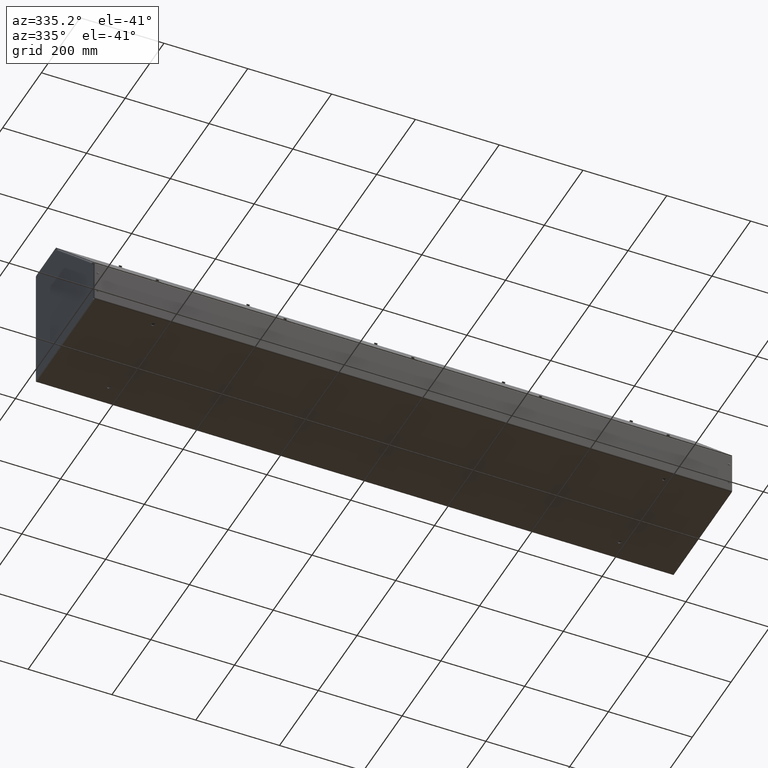
[diagram: clean part render]
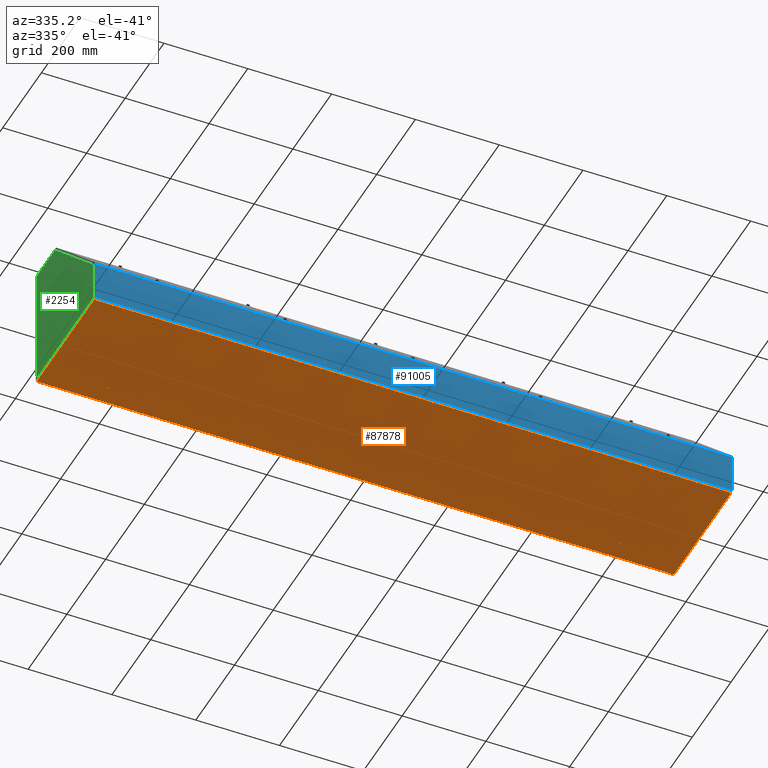
[diagram: same view with three faces highlighted in distinct colors, each labeled with its STEP entity id]
A machine part, auxiliary view with three faces highlighted in distinct colors.
Their STEP definitions:

[orange] entity #87878 — the highlighted planar face has unit normal (0, 0, 1).
#22 = CARTESIAN_POINT ( 'NONE',  ( 29.20839738715530842, 1.796556077333093304, -2.999999999999973355 ) ) ;
#30 = CARTESIAN_POINT ( 'NONE',  ( -0.3833526128446826386, -5.602443922666927811, -2.999999999999999556 ) ) ;
#740 = DIRECTION ( 'NONE',  ( -7.880034776090749596E-14, -1.000000000000000000, 0.000000000000000000 ) ) ;
#747 = DIRECTION ( 'NONE',  ( -7.880034776090749596E-14, -1.000000000000000000, 0.000000000000000000 ) ) ;
#986 = VERTEX_POINT ( 'NONE', #67304 ) ;
#1299 = CARTESIAN_POINT ( 'NONE',  ( -24.38335261284468913, 4.261056077333083003, -2.999999999999999556 ) ) ;
#1407 = CARTESIAN_POINT ( 'NONE',  ( 29.27289738715530731, -4.274443922666907092, -2.999999999999921396 ) ) ;
#1735 = VECTOR ( 'NONE', #740, 39.37007874015748143 ) ;
#2116 = VERTEX_POINT ( 'NONE', #4968 ) ;
#2302 = AXIS2_PLACEMENT_3D ( 'NONE', #47939, #48454, #15919 ) ;
#2579 = CARTESIAN_POINT ( 'NONE',  ( 29.33739738715532042, 4.796556077333087309, -2.999999999999999556 ) ) ;
#2933 = ORIENTED_EDGE ( 'NONE', *, *, #7736, .T. ) ;
#3079 = AXIS2_PLACEMENT_3D ( 'NONE', #96219, #87852, #88976 ) ;
#3989 = DIRECTION ( 'NONE',  ( 1.000000000000000000, 0.000000000000000000, 0.000000000000000000 ) ) ;
#4346 = EDGE_LOOP ( 'NONE', ( #55956, #50996, #81074, #64146 ) ) ;
#4618 = VERTEX_POINT ( 'NONE', #34026 ) ;
#4670 = DIRECTION ( 'NONE',  ( 1.000000000000000000, 0.000000000000000000, 0.000000000000000000 ) ) ;
#4676 = DIRECTION ( 'NONE',  ( 0.000000000000000000, 0.000000000000000000, 1.000000000000000000 ) ) ;
#4826 = EDGE_CURVE ( 'NONE', #73029, #93962, #28736, .T. ) ;
#4968 = CARTESIAN_POINT ( 'NONE',  ( -24.52397761284468913, 4.261056077333083003, -2.999999999999999556 ) ) ;
#5156 = VECTOR ( 'NONE', #36824, 39.37007874015748143 ) ;
#5968 = CARTESIAN_POINT ( 'NONE',  ( 29.55414738715530731, 6.261056077333091885, -2.999999999999999556 ) ) ;
#6246 = DIRECTION ( 'NONE',  ( 1.000000000000000000, 0.000000000000000000, 0.000000000000000000 ) ) ;
#6288 = DIRECTION ( 'NONE',  ( 0.000000000000000000, 0.000000000000000000, 1.000000000000000000 ) ) ;
#6345 = DIRECTION ( 'NONE',  ( 1.000000000000000000, 0.000000000000000000, 0.000000000000000000 ) ) ;
#6601 = CIRCLE ( 'NONE', #85334, 0.06449999999999926625 ) ;
#6773 = EDGE_CURVE ( 'NONE', #22938, #48491, #62423, .T. ) ;
#6783 = DIRECTION ( 'NONE',  ( 0.000000000000000000, 0.000000000000000000, 1.000000000000000000 ) ) ;
#7231 = AXIS2_PLACEMENT_3D ( 'NONE', #67402, #20790, #27527 ) ;
#7360 = DIRECTION ( 'NONE',  ( 0.000000000000000000, 0.000000000000000000, 1.000000000000000000 ) ) ;
#7649 = VERTEX_POINT ( 'NONE', #23889 ) ;
#7736 = EDGE_CURVE ( 'NONE', #93962, #73029, #21456, .T. ) ;
#7904 = AXIS2_PLACEMENT_3D ( 'NONE', #54460, #104198, #62807 ) ;
#7916 = DIRECTION ( 'NONE',  ( 1.000000000000000000, 0.000000000000000000, 0.000000000000000000 ) ) ;
#8119 = ORIENTED_EDGE ( 'NONE', *, *, #106785, .F. ) ;
#8417 = AXIS2_PLACEMENT_3D ( 'NONE', #56256, #90839, #4670 ) ;
#8664 = DIRECTION ( 'NONE',  ( 1.576006955218149919E-13, 1.000000000000000000, 0.000000000000000000 ) ) ;
#9005 = CARTESIAN_POINT ( 'NONE',  ( 29.20839738715530842, -4.203443922666907362, -2.999999999999921396 ) ) ;
#9179 = AXIS2_PLACEMENT_3D ( 'NONE', #21703, #73319, #45320 ) ;
#9226 = VERTEX_POINT ( 'NONE', #104132 ) ;
#9752 = PLANE ( 'NONE',  #86929 ) ;
#9860 = AXIS2_PLACEMENT_3D ( 'NONE', #27226, #35140, #68216 ) ;
#9878 = VERTEX_POINT ( 'NONE', #104685 ) ;
#10266 = VECTOR ( 'NONE', #73032, 39.37007874015748143 ) ;
#10450 = VERTEX_POINT ( 'NONE', #72187 ) ;
#10840 = FACE_BOUND ( 'NONE', #52843, .T. ) ;
#11210 = VERTEX_POINT ( 'NONE', #65144 ) ;
#11350 = LINE ( 'NONE', #64009, #47850 ) ;
#11400 = CARTESIAN_POINT ( 'NONE',  ( 29.20839738715530842, -1.203443922666904031, -2.999999999999947153 ) ) ;
#11482 = CARTESIAN_POINT ( 'NONE',  ( -30.10410261284469158, -1.274443922666924633, -2.999999999999947153 ) ) ;
#11565 = VERTEX_POINT ( 'NONE', #28043 ) ;
#11792 = CARTESIAN_POINT ( 'NONE',  ( -30.32085261284468913, -5.738943922666926767, -2.999999999999999556 ) ) ;
#11829 = EDGE_CURVE ( 'NONE', #59904, #16909, #6601, .T. ) ;
#11963 = FACE_BOUND ( 'NONE', #4346, .T. ) ;
#12011 = CARTESIAN_POINT ( 'NONE',  ( -30.03960261284468913, 1.725556077333072924, -2.999999999999973355 ) ) ;
#12242 = CARTESIAN_POINT ( 'NONE',  ( -30.03960261284468913, -4.203443922666926902, -2.999999999999921396 ) ) ;
#12280 = EDGE_CURVE ( 'NONE', #48491, #59904, #11350, .T. ) ;
#12507 = CARTESIAN_POINT ( 'NONE',  ( -0.3833526128446826386, 0.2610560773330823370, -2.999999999999999556 ) ) ;
#12755 = CARTESIAN_POINT ( 'NONE',  ( 29.33739738715530621, 4.725556077333087579, -2.999999999999999556 ) ) ;
#12968 = AXIS2_PLACEMENT_3D ( 'NONE', #25695, #61562, #18981 ) ;
#13196 = LINE ( 'NONE', #49031, #29543 ) ;
#13539 = CIRCLE ( 'NONE', #49288, 0.06449999999999926625 ) ;
#13738 = CARTESIAN_POINT ( 'NONE',  ( 29.33739738715530621, -1.274443922666906870, -2.999999999999947153 ) ) ;
#13936 = VECTOR ( 'NONE', #92672, 39.37007874015748143 ) ;
#14266 = CARTESIAN_POINT ( 'NONE',  ( -30.32085261284468913, -5.602443922666924259, -2.999999999999999112 ) ) ;
#14779 = EDGE_LOOP ( 'NONE', ( #8119, #106382, #105166, #95073 ) ) ;
#15315 = EDGE_CURVE ( 'NONE', #35840, #7649, #102714, .T. ) ;
#15619 = VECTOR ( 'NONE', #747, 39.37007874015748143 ) ;
#15919 = DIRECTION ( 'NONE',  ( 1.000000000000000000, 0.000000000000000000, 0.000000000000000000 ) ) ;
#16909 = VERTEX_POINT ( 'NONE', #24766 ) ;
#17350 = VERTEX_POINT ( 'NONE', #51563 ) ;
#18211 = ORIENTED_EDGE ( 'NONE', *, *, #84879, .T. ) ;
#18981 = DIRECTION ( 'NONE',  ( 1.000000000000000000, 0.000000000000000000, 0.000000000000000000 ) ) ;
#18983 = ORIENTED_EDGE ( 'NONE', *, *, #55840, .T. ) ;
#19032 = CARTESIAN_POINT ( 'NONE',  ( 29.20839738715530132, -4.274443922666904427, -2.999999999999921396 ) ) ;
#19038 = EDGE_CURVE ( 'NONE', #17350, #21876, #87567, .T. ) ;
#19190 = DIRECTION ( 'NONE',  ( 1.576006955218099937E-13, 1.000000000000000000, 0.000000000000000000 ) ) ;
#19232 = FACE_BOUND ( 'NONE', #52305, .T. ) ;
#19812 = VERTEX_POINT ( 'NONE', #11482 ) ;
#20383 = EDGE_CURVE ( 'NONE', #11210, #104161, #84038, .T. ) ;
#20790 = DIRECTION ( 'NONE',  ( 0.000000000000000000, 0.000000000000000000, 1.000000000000000000 ) ) ;
#20853 = EDGE_CURVE ( 'NONE', #45046, #2116, #50633, .T. ) ;
#21167 = DIRECTION ( 'NONE',  ( 1.000000000000000000, 0.000000000000000000, 0.000000000000000000 ) ) ;
#21456 = CIRCLE ( 'NONE', #94766, 0.1406250000000000833 ) ;
#21703 = CARTESIAN_POINT ( 'NONE',  ( -30.03960261284468913, -1.274443922666927076, -2.999999999999947153 ) ) ;
#21730 = DIRECTION ( 'NONE',  ( -7.880034776090749596E-14, -1.000000000000000000, 0.000000000000000000 ) ) ;
#21815 = VECTOR ( 'NONE', #54628, 39.37007874015748143 ) ;
#21876 = VERTEX_POINT ( 'NONE', #76790 ) ;
#22104 = DIRECTION ( 'NONE',  ( 1.576006955218099937E-13, 1.000000000000000000, 0.000000000000000000 ) ) ;
#22144 = ORIENTED_EDGE ( 'NONE', *, *, #12280, .T. ) ;
#22340 = CIRCLE ( 'NONE', #43857, 0.06449999999999926625 ) ;
#22938 = VERTEX_POINT ( 'NONE', #27759 ) ;
#23678 = AXIS2_PLACEMENT_3D ( 'NONE', #83496, #6783, #75146 ) ;
#23758 = EDGE_CURVE ( 'NONE', #94387, #100197, #109403, .T. ) ;
#23889 = CARTESIAN_POINT ( 'NONE',  ( -29.97510261284469024, 4.725556077333068039, -2.999999999999999556 ) ) ;
#24133 = CARTESIAN_POINT ( 'NONE',  ( 29.20839738715530842, 1.796556077333095747, -2.999999999999973355 ) ) ;
#24766 = CARTESIAN_POINT ( 'NONE',  ( -29.97510261284469024, -4.274443922666931961, -2.999999999999921396 ) ) ;
#25158 = EDGE_CURVE ( 'NONE', #49818, #11210, #72212, .T. ) ;
#25652 = AXIS2_PLACEMENT_3D ( 'NONE', #30840, #46646, #3989 ) ;
#25695 = CARTESIAN_POINT ( 'NONE',  ( 29.27289738715530731, 1.725556077333093130, -2.999999999999973355 ) ) ;
#26144 = CARTESIAN_POINT ( 'NONE',  ( -30.10410261284468803, 1.796556077333073098, -2.999999999999973355 ) ) ;
#26287 = CIRCLE ( 'NONE', #8417, 0.06449999999999926625 ) ;
#26330 = CIRCLE ( 'NONE', #3079, 0.06449999999999926625 ) ;
#26830 = ORIENTED_EDGE ( 'NONE', *, *, #108437, .T. ) ;
#26837 = CARTESIAN_POINT ( 'NONE',  ( 29.27289738715530731, 4.725556077333092908, -2.999999999999999556 ) ) ;
#27226 = CARTESIAN_POINT ( 'NONE',  ( 29.27289738715530731, -1.203443922666906696, -2.999999999999947153 ) ) ;
#27381 = ORIENTED_EDGE ( 'NONE', *, *, #23758, .T. ) ;
#27468 = CARTESIAN_POINT ( 'NONE',  ( 29.33739738715530621, -1.274443922666911977, -2.999999999999947153 ) ) ;
#27527 = DIRECTION ( 'NONE',  ( 1.000000000000000000, 0.000000000000000000, 0.000000000000000000 ) ) ;
#27759 = CARTESIAN_POINT ( 'NONE',  ( -29.97510261284467603, -4.203443922666926902, -2.999999999999921396 ) ) ;
#27835 = EDGE_CURVE ( 'NONE', #7649, #100816, #64031, .T. ) ;
#27928 = LINE ( 'NONE', #89469, #108685 ) ;
#27941 = EDGE_CURVE ( 'NONE', #107866, #36642, #53135, .T. ) ;
#28043 = CARTESIAN_POINT ( 'NONE',  ( -30.10410261284468803, 4.796556077333074875, -2.999999999999999556 ) ) ;
#28124 = CARTESIAN_POINT ( 'NONE',  ( 29.20839738715530132, 4.725556077333095573, -2.999999999999999556 ) ) ;
#28736 = CIRCLE ( 'NONE', #7231, 0.1406250000000000833 ) ;
#28771 = DIRECTION ( 'NONE',  ( 1.000000000000000000, 0.000000000000000000, 0.000000000000000000 ) ) ;
#29068 = EDGE_CURVE ( 'NONE', #103129, #17350, #100555, .T. ) ;
#29250 = ORIENTED_EDGE ( 'NONE', *, *, #106525, .T. ) ;
#29283 = FACE_BOUND ( 'NONE', #65991, .T. ) ;
#29543 = VECTOR ( 'NONE', #22104, 39.37007874015748143 ) ;
#30178 = AXIS2_PLACEMENT_3D ( 'NONE', #12242, #38031, #21167 ) ;
#30271 = CARTESIAN_POINT ( 'NONE',  ( -30.10410261284469158, -4.274443922666923967, -2.999999999999921396 ) ) ;
#30840 = CARTESIAN_POINT ( 'NONE',  ( 29.27289738715530731, -4.203443922666907362, -2.999999999999921396 ) ) ;
#30905 = EDGE_LOOP ( 'NONE', ( #101977, #2933 ) ) ;
#31110 = EDGE_CURVE ( 'NONE', #100816, #11565, #26330, .T. ) ;
#31670 = DIRECTION ( 'NONE',  ( 0.000000000000000000, 0.000000000000000000, 1.000000000000000000 ) ) ;
#31713 = DIRECTION ( 'NONE',  ( 0.000000000000000000, 0.000000000000000000, 1.000000000000000000 ) ) ;
#32503 = CIRCLE ( 'NONE', #64773, 0.1406250000000000833 ) ;
#32736 = CARTESIAN_POINT ( 'NONE',  ( 29.33739738715530621, 4.725556077333092908, -2.999999999999999556 ) ) ;
#33312 = ORIENTED_EDGE ( 'NONE', *, *, #70662, .T. ) ;
#33612 = CARTESIAN_POINT ( 'NONE',  ( 29.27289738715530731, 1.796556077333093304, -2.999999999999973355 ) ) ;
#33729 = VERTEX_POINT ( 'NONE', #110429 ) ;
#33766 = CARTESIAN_POINT ( 'NONE',  ( 29.20839738715530842, 4.796556077333092638, -2.999999999999999556 ) ) ;
#34026 = CARTESIAN_POINT ( 'NONE',  ( -30.10410261284468803, -1.203443922666924237, -2.999999999999947153 ) ) ;
#34148 = DIRECTION ( 'NONE',  ( -7.880034776090749596E-14, -1.000000000000000000, 0.000000000000000000 ) ) ;
#35140 = DIRECTION ( 'NONE',  ( 0.000000000000000000, 0.000000000000000000, 1.000000000000000000 ) ) ;
#35441 = LINE ( 'NONE', #76343, #67460 ) ;
#35840 = VERTEX_POINT ( 'NONE', #100460 ) ;
#35956 = VERTEX_POINT ( 'NONE', #61291 ) ;
#36164 = VERTEX_POINT ( 'NONE', #42204 ) ;
#36209 = EDGE_CURVE ( 'NONE', #36642, #107866, #56267, .T. ) ;
#36563 = DIRECTION ( 'NONE',  ( 0.000000000000000000, 0.000000000000000000, 1.000000000000000000 ) ) ;
#36590 = DIRECTION ( 'NONE',  ( -7.880034776090749596E-14, -1.000000000000000000, 0.000000000000000000 ) ) ;
#36642 = VERTEX_POINT ( 'NONE', #78639 ) ;
#36824 = DIRECTION ( 'NONE',  ( -7.880034776090749596E-14, -1.000000000000000000, 0.000000000000000000 ) ) ;
#37236 = VERTEX_POINT ( 'NONE', #45929 ) ;
#37483 = EDGE_CURVE ( 'NONE', #97148, #49818, #71041, .T. ) ;
#37746 = FACE_BOUND ( 'NONE', #109325, .T. ) ;
#37806 = ORIENTED_EDGE ( 'NONE', *, *, #31110, .T. ) ;
#38013 = CARTESIAN_POINT ( 'NONE',  ( 29.33739738715530621, -4.274443922666912421, -2.999999999999921396 ) ) ;
#38031 = DIRECTION ( 'NONE',  ( 0.000000000000000000, 0.000000000000000000, 1.000000000000000000 ) ) ;
#38515 = CIRCLE ( 'NONE', #9860, 0.06449999999999926625 ) ;
#38593 = CARTESIAN_POINT ( 'NONE',  ( -29.97510261284469024, -1.274443922666927076, -2.999999999999947153 ) ) ;
#38897 = CARTESIAN_POINT ( 'NONE',  ( 23.75727238715530731, 4.261056077333083003, -2.999999999999999556 ) ) ;
#39088 = ORIENTED_EDGE ( 'NONE', *, *, #20383, .T. ) ;
#39429 = DIRECTION ( 'NONE',  ( 1.000000000000000000, 0.000000000000000000, -0.000000000000000000 ) ) ;
#39457 = ORIENTED_EDGE ( 'NONE', *, *, #37483, .T. ) ;
#40575 = AXIS2_PLACEMENT_3D ( 'NONE', #12011, #4676, #28771 ) ;
#40661 = EDGE_CURVE ( 'NONE', #36164, #75822, #77437, .T. ) ;
#40987 = DIRECTION ( 'NONE',  ( 0.000000000000000000, 0.000000000000000000, 1.000000000000000000 ) ) ;
#41365 = CARTESIAN_POINT ( 'NONE',  ( 23.61664738715530731, -4.738943922666926767, -2.999999999999999556 ) ) ;
#41626 = VECTOR ( 'NONE', #74541, 39.37007874015748143 ) ;
#41952 = VERTEX_POINT ( 'NONE', #14266 ) ;
#42161 = DIRECTION ( 'NONE',  ( 1.576006955218149919E-13, 1.000000000000000000, 0.000000000000000000 ) ) ;
#42170 = CARTESIAN_POINT ( 'NONE',  ( 29.33739738715532042, -4.203443922666911803, -2.999999999999921396 ) ) ;
#42204 = CARTESIAN_POINT ( 'NONE',  ( 29.20839738715530842, 4.796556077333094414, -2.999999999999999556 ) ) ;
#42516 = VERTEX_POINT ( 'NONE', #94125 ) ;
#43162 = DIRECTION ( 'NONE',  ( 1.000000000000000000, 0.000000000000000000, 0.000000000000000000 ) ) ;
#43857 = AXIS2_PLACEMENT_3D ( 'NONE', #109290, #84683, #6345 ) ;
#44105 = VECTOR ( 'NONE', #80908, 39.37007874015748143 ) ;
#44442 = AXIS2_PLACEMENT_3D ( 'NONE', #56725, #91311, #6246 ) ;
#44534 = ORIENTED_EDGE ( 'NONE', *, *, #86987, .T. ) ;
#44586 = EDGE_LOOP ( 'NONE', ( #105932, #37806, #105016, #89617 ) ) ;
#45046 = VERTEX_POINT ( 'NONE', #74647 ) ;
#45096 = EDGE_CURVE ( 'NONE', #99420, #9878, #100839, .T. ) ;
#45320 = DIRECTION ( 'NONE',  ( 1.000000000000000000, 0.000000000000000000, 0.000000000000000000 ) ) ;
#45359 = DIRECTION ( 'NONE',  ( 0.000000000000000000, 0.000000000000000000, 1.000000000000000000 ) ) ;
#45488 = EDGE_CURVE ( 'NONE', #37236, #35956, #13196, .T. ) ;
#45775 = DIRECTION ( 'NONE',  ( 0.000000000000000000, 0.000000000000000000, 1.000000000000000000 ) ) ;
#45929 = CARTESIAN_POINT ( 'NONE',  ( -29.97510261284469024, 1.725556077333068039, -2.999999999999973355 ) ) ;
#46123 = CARTESIAN_POINT ( 'NONE',  ( 23.47602238715530731, 4.261056077333083003, -2.999999999999999556 ) ) ;
#46171 = FACE_BOUND ( 'NONE', #64083, .T. ) ;
#46646 = DIRECTION ( 'NONE',  ( 0.000000000000000000, 0.000000000000000000, 1.000000000000000000 ) ) ;
#47394 = EDGE_CURVE ( 'NONE', #33729, #4618, #26287, .T. ) ;
#47850 = VECTOR ( 'NONE', #36590, 39.37007874015748143 ) ;
#47939 = CARTESIAN_POINT ( 'NONE',  ( -24.38335261284468913, 4.261056077333083003, -2.999999999999999556 ) ) ;
#48454 = DIRECTION ( 'NONE',  ( 0.000000000000000000, 0.000000000000000000, 1.000000000000000000 ) ) ;
#48491 = VERTEX_POINT ( 'NONE', #87576 ) ;
#48568 = CARTESIAN_POINT ( 'NONE',  ( -30.03960261284468913, -4.274443922666926632, -2.999999999999921396 ) ) ;
#49031 = CARTESIAN_POINT ( 'NONE',  ( -29.97510261284469024, 1.725556077333072924, -2.999999999999973355 ) ) ;
#49288 = AXIS2_PLACEMENT_3D ( 'NONE', #33612, #40987, #101878 ) ;
#49788 = EDGE_CURVE ( 'NONE', #76916, #92321, #32503, .T. ) ;
#49818 = VERTEX_POINT ( 'NONE', #42170 ) ;
#50261 = EDGE_CURVE ( 'NONE', #19812, #10450, #84293, .T. ) ;
#50631 = ORIENTED_EDGE ( 'NONE', *, *, #45488, .T. ) ;
#50633 = CIRCLE ( 'NONE', #2302, 0.1406250000000000833 ) ;
#50776 = EDGE_CURVE ( 'NONE', #41952, #103129, #76172, .T. ) ;
#50782 = EDGE_CURVE ( 'NONE', #9226, #99420, #73834, .T. ) ;
#50996 = ORIENTED_EDGE ( 'NONE', *, *, #108302, .T. ) ;
#51266 = DIRECTION ( 'NONE',  ( 1.000000000000000000, 0.000000000000000000, 0.000000000000000000 ) ) ;
#51563 = CARTESIAN_POINT ( 'NONE',  ( 29.55414738715530731, 6.124556077333090265, -2.999999999999999556 ) ) ;
#51920 = ORIENTED_EDGE ( 'NONE', *, *, #93883, .T. ) ;
#51983 = VECTOR ( 'NONE', #19190, 39.37007874015748143 ) ;
#52184 = DIRECTION ( 'NONE',  ( 1.000000000000000000, 0.000000000000000000, 0.000000000000000000 ) ) ;
#52250 = VECTOR ( 'NONE', #72225, 39.37007874015748143 ) ;
#52294 = CARTESIAN_POINT ( 'NONE',  ( 29.55414738715530731, -5.602443922666921594, -2.999999999999999556 ) ) ;
#52305 = EDGE_LOOP ( 'NONE', ( #27381, #105829, #68543, #26830 ) ) ;
#52322 = CIRCLE ( 'NONE', #23678, 0.06449999999999926625 ) ;
#52334 = FACE_OUTER_BOUND ( 'NONE', #14779, .T. ) ;
#52617 = LINE ( 'NONE', #22, #95038 ) ;
#52843 = EDGE_LOOP ( 'NONE', ( #44534, #51920, #18983, #76065 ) ) ;
#53135 = CIRCLE ( 'NONE', #88870, 0.1406250000000000833 ) ;
#53405 = LINE ( 'NONE', #88016, #51983 ) ;
#53457 = FACE_BOUND ( 'NONE', #55206, .T. ) ;
#54392 = DIRECTION ( 'NONE',  ( -0.000000000000000000, -1.000000000000000000, 0.000000000000000000 ) ) ;
#54460 = CARTESIAN_POINT ( 'NONE',  ( -24.38335261284468913, -4.738943922666926767, -2.999999999999999556 ) ) ;
#54628 = DIRECTION ( 'NONE',  ( -1.000000000000000000, -0.000000000000000000, 0.000000000000000000 ) ) ;
#55199 = EDGE_CURVE ( 'NONE', #11565, #35840, #27928, .T. ) ;
#55206 = EDGE_LOOP ( 'NONE', ( #39457, #99309, #39088, #33312 ) ) ;
#55392 = LINE ( 'NONE', #38593, #52250 ) ;
#55420 = ORIENTED_EDGE ( 'NONE', *, *, #27941, .T. ) ;
#55840 = EDGE_CURVE ( 'NONE', #56238, #42516, #72534, .T. ) ;
#55956 = ORIENTED_EDGE ( 'NONE', *, *, #45096, .T. ) ;
#56238 = VERTEX_POINT ( 'NONE', #11400 ) ;
#56256 = CARTESIAN_POINT ( 'NONE',  ( -30.03960261284468913, -1.203443922666926902, -2.999999999999947153 ) ) ;
#56267 = CIRCLE ( 'NONE', #7904, 0.1406250000000000833 ) ;
#56725 = CARTESIAN_POINT ( 'NONE',  ( 23.61664738715530731, 4.261056077333083003, -2.999999999999999556 ) ) ;
#58127 = ORIENTED_EDGE ( 'NONE', *, *, #83854, .T. ) ;
#59516 = VECTOR ( 'NONE', #84589, 39.37007874015748143 ) ;
#59696 = CARTESIAN_POINT ( 'NONE',  ( -30.10410261284468803, 1.796556077333075541, -2.999999999999973355 ) ) ;
#59904 = VERTEX_POINT ( 'NONE', #30271 ) ;
#60104 = DIRECTION ( 'NONE',  ( -7.880034776090749596E-14, -1.000000000000000000, 0.000000000000000000 ) ) ;
#60526 = CIRCLE ( 'NONE', #89001, 0.06449999999999926625 ) ;
#60527 = EDGE_CURVE ( 'NONE', #100197, #36164, #60526, .T. ) ;
#60787 = DIRECTION ( 'NONE',  ( 1.000000000000000000, 0.000000000000000000, 0.000000000000000000 ) ) ;
#60890 = EDGE_CURVE ( 'NONE', #109408, #986, #68796, .T. ) ;
#61200 = ORIENTED_EDGE ( 'NONE', *, *, #74831, .T. ) ;
#61291 = CARTESIAN_POINT ( 'NONE',  ( -29.97510261284467603, 1.796556077333067769, -2.999999999999973355 ) ) ;
#61562 = DIRECTION ( 'NONE',  ( 0.000000000000000000, 0.000000000000000000, 1.000000000000000000 ) ) ;
#61872 = DIRECTION ( 'NONE',  ( 0.000000000000000000, 0.000000000000000000, 1.000000000000000000 ) ) ;
#62423 = CIRCLE ( 'NONE', #30178, 0.06449999999999926625 ) ;
#62546 = CARTESIAN_POINT ( 'NONE',  ( 29.27289738715530731, 4.796556077333092638, -2.999999999999999556 ) ) ;
#62562 = DIRECTION ( 'NONE',  ( 1.576006955218149919E-13, 1.000000000000000000, 0.000000000000000000 ) ) ;
#62807 = DIRECTION ( 'NONE',  ( 1.000000000000000000, 0.000000000000000000, 0.000000000000000000 ) ) ;
#63364 = AXIS2_PLACEMENT_3D ( 'NONE', #84257, #31670, #51266 ) ;
#64009 = CARTESIAN_POINT ( 'NONE',  ( -30.10410261284468803, -4.203443922666926902, -2.999999999999921396 ) ) ;
#64031 = LINE ( 'NONE', #82434, #10266 ) ;
#64083 = EDGE_LOOP ( 'NONE', ( #58127, #90822, #77969, #100049 ) ) ;
#64146 = ORIENTED_EDGE ( 'NONE', *, *, #50782, .T. ) ;
#64160 = EDGE_CURVE ( 'NONE', #42516, #86338, #22340, .T. ) ;
#64431 = AXIS2_PLACEMENT_3D ( 'NONE', #1407, #61872, #60787 ) ;
#64773 = AXIS2_PLACEMENT_3D ( 'NONE', #92427, #7360, #7916 ) ;
#65039 = EDGE_LOOP ( 'NONE', ( #29250, #82265, #22144, #87864 ) ) ;
#65144 = CARTESIAN_POINT ( 'NONE',  ( 29.20839738715530842, -4.203443922666903809, -2.999999999999921396 ) ) ;
#65172 = CARTESIAN_POINT ( 'NONE',  ( -29.97510261284467603, 4.796556077333067769, -2.999999999999999556 ) ) ;
#65404 = ORIENTED_EDGE ( 'NONE', *, *, #20853, .T. ) ;
#65991 = EDGE_LOOP ( 'NONE', ( #65404, #102502 ) ) ;
#67304 = CARTESIAN_POINT ( 'NONE',  ( -30.10410261284469158, 1.725556077333075589, -2.999999999999973355 ) ) ;
#67402 = CARTESIAN_POINT ( 'NONE',  ( 23.61664738715530731, -4.738943922666926767, -2.999999999999999556 ) ) ;
#67460 = VECTOR ( 'NONE', #60104, 39.37007874015748143 ) ;
#68216 = DIRECTION ( 'NONE',  ( 1.000000000000000000, 0.000000000000000000, 0.000000000000000000 ) ) ;
#68543 = ORIENTED_EDGE ( 'NONE', *, *, #40661, .T. ) ;
#68563 = EDGE_LOOP ( 'NONE', ( #55420, #74852 ) ) ;
#68796 = LINE ( 'NONE', #26144, #5156 ) ;
#69349 = VERTEX_POINT ( 'NONE', #91165 ) ;
#69888 = DIRECTION ( 'NONE',  ( 1.000000000000000000, 0.000000000000000000, 0.000000000000000000 ) ) ;
#69968 = AXIS2_PLACEMENT_3D ( 'NONE', #1299, #36563, #70215 ) ;
#70215 = DIRECTION ( 'NONE',  ( 1.000000000000000000, 0.000000000000000000, 0.000000000000000000 ) ) ;
#70662 = EDGE_CURVE ( 'NONE', #104161, #97148, #82283, .T. ) ;
#71041 = LINE ( 'NONE', #105040, #82826 ) ;
#71255 = DIRECTION ( 'NONE',  ( 0.000000000000000000, 0.000000000000000000, 1.000000000000000000 ) ) ;
#71576 = EDGE_CURVE ( 'NONE', #2116, #45046, #102067, .T. ) ;
#72187 = CARTESIAN_POINT ( 'NONE',  ( -29.97510261284469024, -1.274443922666932183, -2.999999999999947153 ) ) ;
#72212 = CIRCLE ( 'NONE', #25652, 0.06449999999999926625 ) ;
#72225 = DIRECTION ( 'NONE',  ( 1.576006955218099937E-13, 1.000000000000000000, 0.000000000000000000 ) ) ;
#72534 = LINE ( 'NONE', #109826, #1735 ) ;
#73029 = VERTEX_POINT ( 'NONE', #107810 ) ;
#73032 = DIRECTION ( 'NONE',  ( 1.576006955218099937E-13, 1.000000000000000000, 0.000000000000000000 ) ) ;
#73319 = DIRECTION ( 'NONE',  ( 0.000000000000000000, 0.000000000000000000, 1.000000000000000000 ) ) ;
#73834 = CIRCLE ( 'NONE', #12968, 0.06449999999999926625 ) ;
#74541 = DIRECTION ( 'NONE',  ( 1.000000000000000000, 0.000000000000000000, -0.000000000000000000 ) ) ;
#74647 = CARTESIAN_POINT ( 'NONE',  ( -24.24272761284468913, 4.261056077333083003, -2.999999999999999556 ) ) ;
#74831 = EDGE_CURVE ( 'NONE', #986, #37236, #93784, .T. ) ;
#74852 = ORIENTED_EDGE ( 'NONE', *, *, #36209, .T. ) ;
#75146 = DIRECTION ( 'NONE',  ( 1.000000000000000000, 0.000000000000000000, 0.000000000000000000 ) ) ;
#75822 = VERTEX_POINT ( 'NONE', #28124 ) ;
#76065 = ORIENTED_EDGE ( 'NONE', *, *, #64160, .T. ) ;
#76172 = LINE ( 'NONE', #30, #41626 ) ;
#76343 = CARTESIAN_POINT ( 'NONE',  ( -30.10410261284468803, -1.203443922666926902, -2.999999999999947153 ) ) ;
#76790 = CARTESIAN_POINT ( 'NONE',  ( -30.32085261284468913, 6.124556077333084048, -2.999999999999999556 ) ) ;
#76916 = VERTEX_POINT ( 'NONE', #46123 ) ;
#77437 = LINE ( 'NONE', #33766, #15619 ) ;
#77969 = ORIENTED_EDGE ( 'NONE', *, *, #103781, .T. ) ;
#78639 = CARTESIAN_POINT ( 'NONE',  ( -24.52397761284468913, -4.738943922666926767, -2.999999999999999556 ) ) ;
#79146 = FACE_BOUND ( 'NONE', #30905, .T. ) ;
#79546 = CARTESIAN_POINT ( 'NONE',  ( -24.38335261284468913, -4.738943922666926767, -2.999999999999999556 ) ) ;
#79775 = AXIS2_PLACEMENT_3D ( 'NONE', #26837, #45359, #43162 ) ;
#80273 = FACE_BOUND ( 'NONE', #65039, .T. ) ;
#80908 = DIRECTION ( 'NONE',  ( 1.576006955218149919E-13, 1.000000000000000000, 0.000000000000000000 ) ) ;
#81074 = ORIENTED_EDGE ( 'NONE', *, *, #83797, .T. ) ;
#81617 = CARTESIAN_POINT ( 'NONE',  ( -24.24272761284468913, -4.738943922666926767, -2.999999999999999556 ) ) ;
#82265 = ORIENTED_EDGE ( 'NONE', *, *, #6773, .T. ) ;
#82283 = CIRCLE ( 'NONE', #64431, 0.06449999999999926625 ) ;
#82434 = CARTESIAN_POINT ( 'NONE',  ( -29.97510261284469024, 4.725556077333073368, -2.999999999999999556 ) ) ;
#82826 = VECTOR ( 'NONE', #62562, 39.37007874015748143 ) ;
#83496 = CARTESIAN_POINT ( 'NONE',  ( -30.03960261284468913, 1.796556077333073098, -2.999999999999973355 ) ) ;
#83797 = EDGE_CURVE ( 'NONE', #91594, #9226, #52617, .T. ) ;
#83854 = EDGE_CURVE ( 'NONE', #10450, #33729, #55392, .T. ) ;
#84038 = LINE ( 'NONE', #9005, #59516 ) ;
#84257 = CARTESIAN_POINT ( 'NONE',  ( -30.03960261284468913, 4.725556077333073368, -2.999999999999999556 ) ) ;
#84293 = CIRCLE ( 'NONE', #9179, 0.06449999999999926625 ) ;
#84589 = DIRECTION ( 'NONE',  ( -7.880034776090749596E-14, -1.000000000000000000, 0.000000000000000000 ) ) ;
#84683 = DIRECTION ( 'NONE',  ( 0.000000000000000000, 0.000000000000000000, 1.000000000000000000 ) ) ;
#84858 = DIRECTION ( 'NONE',  ( 1.000000000000000000, 0.000000000000000000, 0.000000000000000000 ) ) ;
#84879 = EDGE_CURVE ( 'NONE', #35956, #109408, #52322, .T. ) ;
#85334 = AXIS2_PLACEMENT_3D ( 'NONE', #48568, #31713, #84858 ) ;
#85512 = CIRCLE ( 'NONE', #44442, 0.1406250000000000833 ) ;
#86190 = EDGE_LOOP ( 'NONE', ( #50631, #18211, #102816, #61200 ) ) ;
#86338 = VERTEX_POINT ( 'NONE', #27468 ) ;
#86929 = AXIS2_PLACEMENT_3D ( 'NONE', #12507, #6288, #39429 ) ;
#86960 = CARTESIAN_POINT ( 'NONE',  ( 23.47602238715530731, -4.738943922666926767, -2.999999999999999556 ) ) ;
#86987 = EDGE_CURVE ( 'NONE', #86338, #69349, #90388, .T. ) ;
#87509 = FACE_BOUND ( 'NONE', #86190, .T. ) ;
#87567 = LINE ( 'NONE', #97020, #21815 ) ;
#87576 = CARTESIAN_POINT ( 'NONE',  ( -30.10410261284468803, -4.203443922666924237, -2.999999999999921396 ) ) ;
#87852 = DIRECTION ( 'NONE',  ( 0.000000000000000000, 0.000000000000000000, 1.000000000000000000 ) ) ;
#87864 = ORIENTED_EDGE ( 'NONE', *, *, #11829, .T. ) ;
#87878 = ADVANCED_FACE ( 'NONE', ( #96964, #19232, #80273, #53457, #87509, #11963, #46171, #10840, #37746, #79146, #29283, #97516, #52334 ), #9752, .F. ) ;
#88016 = CARTESIAN_POINT ( 'NONE',  ( -29.97510261284469024, -4.274443922666926632, -2.999999999999921396 ) ) ;
#88870 = AXIS2_PLACEMENT_3D ( 'NONE', #79546, #71255, #52184 ) ;
#88930 = VECTOR ( 'NONE', #8664, 39.37007874015748143 ) ;
#88976 = DIRECTION ( 'NONE',  ( 1.000000000000000000, 0.000000000000000000, 0.000000000000000000 ) ) ;
#89001 = AXIS2_PLACEMENT_3D ( 'NONE', #62546, #45775, #69888 ) ;
#89469 = CARTESIAN_POINT ( 'NONE',  ( -30.10410261284468803, 4.796556077333073098, -2.999999999999999556 ) ) ;
#89617 = ORIENTED_EDGE ( 'NONE', *, *, #15315, .T. ) ;
#90388 = LINE ( 'NONE', #13738, #44105 ) ;
#90822 = ORIENTED_EDGE ( 'NONE', *, *, #47394, .T. ) ;
#90839 = DIRECTION ( 'NONE',  ( 0.000000000000000000, 0.000000000000000000, 1.000000000000000000 ) ) ;
#91165 = CARTESIAN_POINT ( 'NONE',  ( 29.33739738715532042, -1.203443922666911581, -2.999999999999947153 ) ) ;
#91311 = DIRECTION ( 'NONE',  ( 0.000000000000000000, 0.000000000000000000, 1.000000000000000000 ) ) ;
#91594 = VERTEX_POINT ( 'NONE', #24133 ) ;
#92321 = VERTEX_POINT ( 'NONE', #38897 ) ;
#92427 = CARTESIAN_POINT ( 'NONE',  ( 23.61664738715530731, 4.261056077333083003, -2.999999999999999556 ) ) ;
#92672 = DIRECTION ( 'NONE',  ( -0.000000000000000000, 1.000000000000000000, 0.000000000000000000 ) ) ;
#92948 = CARTESIAN_POINT ( 'NONE',  ( 29.33739738715530621, 1.725556077333093130, -2.999999999999973355 ) ) ;
#93283 = DIRECTION ( 'NONE',  ( 1.000000000000000000, 0.000000000000000000, 0.000000000000000000 ) ) ;
#93784 = CIRCLE ( 'NONE', #40575, 0.06449999999999926625 ) ;
#93859 = ORIENTED_EDGE ( 'NONE', *, *, #49788, .T. ) ;
#93883 = EDGE_CURVE ( 'NONE', #69349, #56238, #38515, .T. ) ;
#93962 = VERTEX_POINT ( 'NONE', #86960 ) ;
#94125 = CARTESIAN_POINT ( 'NONE',  ( 29.20839738715530132, -1.274443922666904427, -2.999999999999947153 ) ) ;
#94387 = VERTEX_POINT ( 'NONE', #12755 ) ;
#94766 = AXIS2_PLACEMENT_3D ( 'NONE', #41365, #109542, #93283 ) ;
#95038 = VECTOR ( 'NONE', #34148, 39.37007874015748143 ) ;
#95073 = ORIENTED_EDGE ( 'NONE', *, *, #50776, .F. ) ;
#95711 = LINE ( 'NONE', #11792, #101961 ) ;
#96219 = CARTESIAN_POINT ( 'NONE',  ( -30.03960261284468913, 4.796556077333073098, -2.999999999999999556 ) ) ;
#96964 = FACE_BOUND ( 'NONE', #44586, .T. ) ;
#97020 = CARTESIAN_POINT ( 'NONE',  ( -0.3833526128446826386, 6.124556077333092929, -2.999999999999999556 ) ) ;
#97148 = VERTEX_POINT ( 'NONE', #38013 ) ;
#97516 = FACE_BOUND ( 'NONE', #68563, .T. ) ;
#99309 = ORIENTED_EDGE ( 'NONE', *, *, #25158, .T. ) ;
#99420 = VERTEX_POINT ( 'NONE', #101011 ) ;
#100049 = ORIENTED_EDGE ( 'NONE', *, *, #50261, .T. ) ;
#100197 = VERTEX_POINT ( 'NONE', #2579 ) ;
#100460 = CARTESIAN_POINT ( 'NONE',  ( -30.10410261284469158, 4.725556077333076033, -2.999999999999999556 ) ) ;
#100555 = LINE ( 'NONE', #5968, #13936 ) ;
#100816 = VERTEX_POINT ( 'NONE', #65172 ) ;
#100839 = LINE ( 'NONE', #92948, #108133 ) ;
#101011 = CARTESIAN_POINT ( 'NONE',  ( 29.33739738715530621, 1.725556077333088245, -2.999999999999973355 ) ) ;
#101878 = DIRECTION ( 'NONE',  ( 1.000000000000000000, 0.000000000000000000, 0.000000000000000000 ) ) ;
#101961 = VECTOR ( 'NONE', #54392, 39.37007874015748143 ) ;
#101977 = ORIENTED_EDGE ( 'NONE', *, *, #4826, .T. ) ;
#102067 = CIRCLE ( 'NONE', #69968, 0.1406250000000000833 ) ;
#102502 = ORIENTED_EDGE ( 'NONE', *, *, #71576, .T. ) ;
#102714 = CIRCLE ( 'NONE', #63364, 0.06449999999999926625 ) ;
#102816 = ORIENTED_EDGE ( 'NONE', *, *, #60890, .T. ) ;
#103129 = VERTEX_POINT ( 'NONE', #52294 ) ;
#103781 = EDGE_CURVE ( 'NONE', #4618, #19812, #35441, .T. ) ;
#104132 = CARTESIAN_POINT ( 'NONE',  ( 29.20839738715530132, 1.725556077333095795, -2.999999999999973355 ) ) ;
#104161 = VERTEX_POINT ( 'NONE', #19032 ) ;
#104198 = DIRECTION ( 'NONE',  ( 0.000000000000000000, 0.000000000000000000, 1.000000000000000000 ) ) ;
#104685 = CARTESIAN_POINT ( 'NONE',  ( 29.33739738715532042, 1.796556077333087975, -2.999999999999973355 ) ) ;
#105016 = ORIENTED_EDGE ( 'NONE', *, *, #55199, .T. ) ;
#105040 = CARTESIAN_POINT ( 'NONE',  ( 29.33739738715530621, -4.274443922666907092, -2.999999999999921396 ) ) ;
#105166 = ORIENTED_EDGE ( 'NONE', *, *, #29068, .F. ) ;
#105422 = EDGE_CURVE ( 'NONE', #92321, #76916, #85512, .T. ) ;
#105829 = ORIENTED_EDGE ( 'NONE', *, *, #60527, .T. ) ;
#105838 = ORIENTED_EDGE ( 'NONE', *, *, #105422, .T. ) ;
#105932 = ORIENTED_EDGE ( 'NONE', *, *, #27835, .T. ) ;
#106382 = ORIENTED_EDGE ( 'NONE', *, *, #19038, .F. ) ;
#106525 = EDGE_CURVE ( 'NONE', #16909, #22938, #53405, .T. ) ;
#106785 = EDGE_CURVE ( 'NONE', #21876, #41952, #95711, .T. ) ;
#107810 = CARTESIAN_POINT ( 'NONE',  ( 23.75727238715530731, -4.738943922666926767, -2.999999999999999556 ) ) ;
#107866 = VERTEX_POINT ( 'NONE', #81617 ) ;
#108133 = VECTOR ( 'NONE', #42161, 39.37007874015748143 ) ;
#108302 = EDGE_CURVE ( 'NONE', #9878, #91594, #13539, .T. ) ;
#108437 = EDGE_CURVE ( 'NONE', #75822, #94387, #110070, .T. ) ;
#108685 = VECTOR ( 'NONE', #21730, 39.37007874015748143 ) ;
#109290 = CARTESIAN_POINT ( 'NONE',  ( 29.27289738715530731, -1.274443922666906870, -2.999999999999947153 ) ) ;
#109325 = EDGE_LOOP ( 'NONE', ( #105838, #93859 ) ) ;
#109403 = LINE ( 'NONE', #32736, #88930 ) ;
#109408 = VERTEX_POINT ( 'NONE', #59696 ) ;
#109542 = DIRECTION ( 'NONE',  ( 0.000000000000000000, 0.000000000000000000, 1.000000000000000000 ) ) ;
#109826 = CARTESIAN_POINT ( 'NONE',  ( 29.20839738715530842, -1.203443922666906696, -2.999999999999947153 ) ) ;
#110070 = CIRCLE ( 'NONE', #79775, 0.06449999999999926625 ) ;
#110429 = CARTESIAN_POINT ( 'NONE',  ( -29.97510261284467603, -1.203443922666926902, -2.999999999999947153 ) ) ;

[blue] entity #91005 — the highlighted planar face has unit normal (-0, 1, -0).
#111 = VERTEX_POINT ( 'NONE', #15173 ) ;
#312 = ORIENTED_EDGE ( 'NONE', *, *, #15093, .T. ) ;
#969 = DIRECTION ( 'NONE',  ( 0.000000000000000000, 1.000000000000000000, -9.450717383487159970E-15 ) ) ;
#1274 = AXIS2_PLACEMENT_3D ( 'NONE', #9306, #5559, #73967 ) ;
#2722 = VERTEX_POINT ( 'NONE', #100658 ) ;
#2772 = CARTESIAN_POINT ( 'NONE',  ( 29.20839738715530842, -5.738943922666916997, -2.035499999999996756 ) ) ;
#3335 = VECTOR ( 'NONE', #80629, 39.37007874015748143 ) ;
#4053 = EDGE_CURVE ( 'NONE', #55651, #67223, #33806, .T. ) ;
#4235 = EDGE_LOOP ( 'NONE', ( #88709, #101254, #78348, #81036 ) ) ;
#4264 = CARTESIAN_POINT ( 'NONE',  ( -30.10410261284466316, -5.738943922666916997, -1.964499999999982371 ) ) ;
#4482 = VECTOR ( 'NONE', #62299, 39.37007874015748143 ) ;
#4836 = CIRCLE ( 'NONE', #1274, 0.06450000000000029321 ) ;
#5559 = DIRECTION ( 'NONE',  ( 0.000000000000000000, 1.000000000000000000, -9.450717383487159970E-15 ) ) ;
#6695 = CARTESIAN_POINT ( 'NONE',  ( -29.97510261284471156, -5.738943922666916997, -0.03550000000001004435 ) ) ;
#7768 = DIRECTION ( 'NONE',  ( 0.000000000000000000, 1.000000000000000000, -9.450717383487159970E-15 ) ) ;
#9187 = VERTEX_POINT ( 'NONE', #23547 ) ;
#9306 = CARTESIAN_POINT ( 'NONE',  ( 29.27289738715530731, -5.738943922666916997, 0.03550000000000021194 ) ) ;
#9601 = AXIS2_PLACEMENT_3D ( 'NONE', #42016, #7768, #41454 ) ;
#9774 = DIRECTION ( 'NONE',  ( 0.000000000000000000, 1.694169298396432862E-14, 1.000000000000000000 ) ) ;
#9885 = CARTESIAN_POINT ( 'NONE',  ( -30.10410261284468803, -5.738943922666916997, -0.03549999999998709743 ) ) ;
#10846 = CARTESIAN_POINT ( 'NONE',  ( -0.3833526128446861914, -5.738943922666908115, -1.000016808362499843 ) ) ;
#10925 = VERTEX_POINT ( 'NONE', #109361 ) ;
#11898 = LINE ( 'NONE', #43466, #12246 ) ;
#12246 = VECTOR ( 'NONE', #60812, 39.37007874015748143 ) ;
#12665 = EDGE_CURVE ( 'NONE', #10925, #111, #70665, .T. ) ;
#12963 = EDGE_CURVE ( 'NONE', #36872, #19406, #79722, .T. ) ;
#13176 = DIRECTION ( 'NONE',  ( 0.000000000000000000, 1.000000000000000000, -9.450717383487159970E-15 ) ) ;
#13312 = DIRECTION ( 'NONE',  ( 0.000000000000000000, 1.000000000000000000, -9.450717383487159970E-15 ) ) ;
#15093 = EDGE_CURVE ( 'NONE', #49622, #2722, #99107, .T. ) ;
#15173 = CARTESIAN_POINT ( 'NONE',  ( -30.32085261284468913, -5.738943922666909891, 0.9434598487360803531 ) ) ;
#15687 = EDGE_LOOP ( 'NONE', ( #21086, #105145, #312, #39876, #18297 ) ) ;
#16245 = ORIENTED_EDGE ( 'NONE', *, *, #81291, .T. ) ;
#16975 = VECTOR ( 'NONE', #54397, 39.37007874015748143 ) ;
#17536 = CARTESIAN_POINT ( 'NONE',  ( 29.55414738715530731, -5.738943922666887687, -2.863499999999991275 ) ) ;
#17689 = ORIENTED_EDGE ( 'NONE', *, *, #96293, .T. ) ;
#18297 = ORIENTED_EDGE ( 'NONE', *, *, #79643, .T. ) ;
#19182 = CARTESIAN_POINT ( 'NONE',  ( -30.10410261284468803, -5.738943922666916997, -2.035499999999986098 ) ) ;
#19346 = ORIENTED_EDGE ( 'NONE', *, *, #68077, .T. ) ;
#19406 = VERTEX_POINT ( 'NONE', #59301 ) ;
#20138 = EDGE_CURVE ( 'NONE', #83667, #22841, #39821, .T. ) ;
#20244 = EDGE_CURVE ( 'NONE', #9187, #92466, #100275, .T. ) ;
#21086 = ORIENTED_EDGE ( 'NONE', *, *, #38413, .T. ) ;
#21354 = EDGE_CURVE ( 'NONE', #89759, #9187, #57914, .T. ) ;
#21718 = ORIENTED_EDGE ( 'NONE', *, *, #89264, .T. ) ;
#21976 = DIRECTION ( 'NONE',  ( 0.000000000000000000, 1.000000000000000000, -9.450717383487159970E-15 ) ) ;
#22841 = VERTEX_POINT ( 'NONE', #9885 ) ;
#22894 = CARTESIAN_POINT ( 'NONE',  ( -0.3833526128446861914, -5.738943922666892128, 0.9434598487360803531 ) ) ;
#22953 = VECTOR ( 'NONE', #92246, 39.37007874015748143 ) ;
#23197 = FACE_BOUND ( 'NONE', #15687, .T. ) ;
#23307 = DIRECTION ( 'NONE',  ( 0.000000000000000000, 1.694169298396432862E-14, 1.000000000000000000 ) ) ;
#23535 = AXIS2_PLACEMENT_3D ( 'NONE', #56168, #73012, #48854 ) ;
#23547 = CARTESIAN_POINT ( 'NONE',  ( 29.20839738715530842, -5.738943922666916997, -0.03549999999998928318 ) ) ;
#24405 = CIRCLE ( 'NONE', #58462, 0.06450000000000029321 ) ;
#24596 = DIRECTION ( 'NONE',  ( 0.000000000000000000, 1.694169298396432862E-14, 1.000000000000000000 ) ) ;
#25107 = CIRCLE ( 'NONE', #102007, 0.06450000000000036260 ) ;
#25555 = DIRECTION ( 'NONE',  ( 0.000000000000000000, 1.694169298396432862E-14, 1.000000000000000000 ) ) ;
#25891 = LINE ( 'NONE', #17536, #75837 ) ;
#25959 = EDGE_CURVE ( 'NONE', #47358, #91950, #25891, .T. ) ;
#27379 = CARTESIAN_POINT ( 'NONE',  ( 29.27289738715530731, -5.738943922666916997, -1.964499999999999691 ) ) ;
#29011 = VERTEX_POINT ( 'NONE', #75433 ) ;
#30022 = DIRECTION ( 'NONE',  ( 0.000000000000000000, 1.000000000000000000, -9.450717383487159970E-15 ) ) ;
#30113 = VERTEX_POINT ( 'NONE', #83676 ) ;
#30495 = DIRECTION ( 'NONE',  ( 0.000000000000000000, 1.694169298396434755E-14, 1.000000000000000000 ) ) ;
#31745 = CARTESIAN_POINT ( 'NONE',  ( 29.27289738715530731, -5.738943922666916997, -1.964499999999999691 ) ) ;
#33806 = CIRCLE ( 'NONE', #89163, 0.06450000000000029321 ) ;
#34320 = CARTESIAN_POINT ( 'NONE',  ( -30.03960261284468913, -5.738943922666916109, 0.1000000000000005052 ) ) ;
#35875 = DIRECTION ( 'NONE',  ( -3.152013910436189776E-13, 0.000000000000000000, -1.000000000000000000 ) ) ;
#36528 = LINE ( 'NONE', #44946, #4482 ) ;
#36872 = VERTEX_POINT ( 'NONE', #34320 ) ;
#37677 = LINE ( 'NONE', #81267, #54637 ) ;
#37767 = DIRECTION ( 'NONE',  ( 0.000000000000000000, 1.000000000000000000, -9.450717383487159970E-15 ) ) ;
#38413 = EDGE_CURVE ( 'NONE', #69231, #59824, #63858, .T. ) ;
#38558 = DIRECTION ( 'NONE',  ( 0.000000000000000000, 1.694169298396434755E-14, 1.000000000000000000 ) ) ;
#39320 = DIRECTION ( 'NONE',  ( -1.000000000000000000, -1.168021856163759957E-16, 0.000000000000000000 ) ) ;
#39519 = EDGE_CURVE ( 'NONE', #111, #47358, #58782, .T. ) ;
#39821 = CIRCLE ( 'NONE', #23535, 0.06450000000000029321 ) ;
#39876 = ORIENTED_EDGE ( 'NONE', *, *, #71790, .T. ) ;
#41205 = EDGE_CURVE ( 'NONE', #107885, #29011, #11898, .T. ) ;
#41427 = EDGE_CURVE ( 'NONE', #67223, #89759, #44324, .T. ) ;
#41454 = DIRECTION ( 'NONE',  ( 0.000000000000000000, 1.694169298396434755E-14, 1.000000000000000000 ) ) ;
#42016 = CARTESIAN_POINT ( 'NONE',  ( 29.27289738715530731, -5.738943922666916997, -0.03549999999999966377 ) ) ;
#43466 = CARTESIAN_POINT ( 'NONE',  ( -29.97510261284469024, -5.738943922666916997, -1.964499999999999691 ) ) ;
#43741 = AXIS2_PLACEMENT_3D ( 'NONE', #27379, #30022, #90445 ) ;
#44324 = LINE ( 'NONE', #72298, #3335 ) ;
#44336 = CARTESIAN_POINT ( 'NONE',  ( 29.20839738715530842, -5.738943922666916997, -2.035499999999987875 ) ) ;
#44911 = CARTESIAN_POINT ( 'NONE',  ( 29.20839738715532974, -5.738943922666916997, 0.03550000000001550526 ) ) ;
#44946 = CARTESIAN_POINT ( 'NONE',  ( -30.10410261284468803, -5.738943922666916997, -2.035499999999996756 ) ) ;
#45398 = DIRECTION ( 'NONE',  ( 3.152013910436189776E-13, 0.000000000000000000, 1.000000000000000000 ) ) ;
#46192 = CARTESIAN_POINT ( 'NONE',  ( 29.27289738715530731, -5.738943922666916997, -2.035499999999999421 ) ) ;
#47163 = CARTESIAN_POINT ( 'NONE',  ( -0.3833526128446899661, -5.738943922666923214, -2.863499999999993495 ) ) ;
#47212 = ORIENTED_EDGE ( 'NONE', *, *, #87957, .T. ) ;
#47358 = VERTEX_POINT ( 'NONE', #76454 ) ;
#47428 = ORIENTED_EDGE ( 'NONE', *, *, #64296, .T. ) ;
#48764 = VERTEX_POINT ( 'NONE', #19182 ) ;
#48854 = DIRECTION ( 'NONE',  ( 0.000000000000000000, 1.694169298396434755E-14, 1.000000000000000000 ) ) ;
#49622 = VERTEX_POINT ( 'NONE', #61265 ) ;
#50344 = VECTOR ( 'NONE', #35875, 39.37007874015748143 ) ;
#51493 = VECTOR ( 'NONE', #39320, 39.37007874015748143 ) ;
#52119 = CIRCLE ( 'NONE', #66450, 0.06450000000000036260 ) ;
#53793 = CARTESIAN_POINT ( 'NONE',  ( 29.33739738715528489, -5.738943922666916997, -2.035500000000011411 ) ) ;
#54151 = CARTESIAN_POINT ( 'NONE',  ( 29.33739738715530621, -5.738943922666916997, 0.03549999999999037259 ) ) ;
#54397 = DIRECTION ( 'NONE',  ( -4.930380657631305720E-32, -5.758792367320417634E-48, 1.000000000000000000 ) ) ;
#54637 = VECTOR ( 'NONE', #80738, 39.37007874015748143 ) ;
#54705 = CARTESIAN_POINT ( 'NONE',  ( 29.55414738715530731, -5.738943922666903674, -2.863499999999993051 ) ) ;
#54982 = EDGE_CURVE ( 'NONE', #91950, #10925, #73473, .T. ) ;
#55179 = DIRECTION ( 'NONE',  ( 0.000000000000000000, 1.000000000000000000, -9.450717383487159970E-15 ) ) ;
#55651 = VERTEX_POINT ( 'NONE', #56944 ) ;
#55661 = CARTESIAN_POINT ( 'NONE',  ( -30.03960261284468913, -5.738943922666916997, 0.03550000000000021194 ) ) ;
#55765 = CARTESIAN_POINT ( 'NONE',  ( 29.27289738715530731, -5.738943922666916997, 0.03550000000000021194 ) ) ;
#56168 = CARTESIAN_POINT ( 'NONE',  ( -30.03960261284468913, -5.738943922666916997, -0.03549999999999966377 ) ) ;
#56944 = CARTESIAN_POINT ( 'NONE',  ( 29.27289738715530731, -5.738943922666916109, 0.1000000000000005052 ) ) ;
#57732 = CARTESIAN_POINT ( 'NONE',  ( -30.03960261284468913, -5.738943922666916997, -1.964499999999999691 ) ) ;
#57914 = CIRCLE ( 'NONE', #9601, 0.06450000000000029321 ) ;
#58462 = AXIS2_PLACEMENT_3D ( 'NONE', #55661, #21976, #65150 ) ;
#58782 = LINE ( 'NONE', #22894, #94029 ) ;
#59249 = CARTESIAN_POINT ( 'NONE',  ( -30.03960261284468913, -5.738943922666916997, -1.964499999999999691 ) ) ;
#59301 = CARTESIAN_POINT ( 'NONE',  ( -29.97510261284469024, -5.738943922666916997, 0.03549999999999037259 ) ) ;
#59824 = VERTEX_POINT ( 'NONE', #90426 ) ;
#60087 = AXIS2_PLACEMENT_3D ( 'NONE', #90511, #13312, #38558 ) ;
#60190 = DIRECTION ( 'NONE',  ( 0.000000000000000000, 8.698272969250569807E-15, 1.000000000000000000 ) ) ;
#60674 = DIRECTION ( 'NONE',  ( -0.000000000000000000, 0.000000000000000000, -1.000000000000000000 ) ) ;
#60812 = DIRECTION ( 'NONE',  ( -3.152013910436189776E-13, 0.000000000000000000, -1.000000000000000000 ) ) ;
#61265 = CARTESIAN_POINT ( 'NONE',  ( 29.27289738715530731, -5.738943922666916109, -1.899999999999999467 ) ) ;
#62299 = DIRECTION ( 'NONE',  ( 3.804579290331179858E-13, 0.000000000000000000, 1.000000000000000000 ) ) ;
#63858 = LINE ( 'NONE', #2772, #79545 ) ;
#64004 = CARTESIAN_POINT ( 'NONE',  ( 29.20839738715530842, -5.738943922666916997, -0.03549999999999966377 ) ) ;
#64296 = EDGE_CURVE ( 'NONE', #19406, #83667, #37677, .T. ) ;
#65150 = DIRECTION ( 'NONE',  ( 0.000000000000000000, 1.694169298396434755E-14, 1.000000000000000000 ) ) ;
#65928 = EDGE_CURVE ( 'NONE', #92466, #55651, #4836, .T. ) ;
#66450 = AXIS2_PLACEMENT_3D ( 'NONE', #31745, #83787, #23307 ) ;
#67223 = VERTEX_POINT ( 'NONE', #54151 ) ;
#67974 = AXIS2_PLACEMENT_3D ( 'NONE', #57732, #91752, #24596 ) ;
#68050 = FACE_BOUND ( 'NONE', #89269, .T. ) ;
#68077 = EDGE_CURVE ( 'NONE', #29011, #48764, #71748, .T. ) ;
#68275 = CARTESIAN_POINT ( 'NONE',  ( -30.10410261284468803, -5.738943922666916997, -0.03549999999999966377 ) ) ;
#68491 = VERTEX_POINT ( 'NONE', #53793 ) ;
#68699 = EDGE_LOOP ( 'NONE', ( #82391, #109949, #104171, #81943, #81482 ) ) ;
#69231 = VERTEX_POINT ( 'NONE', #44336 ) ;
#69893 = AXIS2_PLACEMENT_3D ( 'NONE', #79763, #55179, #104359 ) ;
#70644 = CARTESIAN_POINT ( 'NONE',  ( 29.33739738715530621, -5.738943922666916997, -1.964499999999999691 ) ) ;
#70665 = LINE ( 'NONE', #105221, #16975 ) ;
#71748 = CIRCLE ( 'NONE', #69893, 0.06450000000000036260 ) ;
#71790 = EDGE_CURVE ( 'NONE', #2722, #68491, #95688, .T. ) ;
#72298 = CARTESIAN_POINT ( 'NONE',  ( 29.33739738715530621, -5.738943922666916997, 0.03550000000000021194 ) ) ;
#73012 = DIRECTION ( 'NONE',  ( 0.000000000000000000, 1.000000000000000000, -9.450717383487159970E-15 ) ) ;
#73473 = LINE ( 'NONE', #47163, #51493 ) ;
#73967 = DIRECTION ( 'NONE',  ( 0.000000000000000000, 1.694169298396434755E-14, 1.000000000000000000 ) ) ;
#74980 = ORIENTED_EDGE ( 'NONE', *, *, #41205, .T. ) ;
#75311 = VERTEX_POINT ( 'NONE', #4264 ) ;
#75433 = CARTESIAN_POINT ( 'NONE',  ( -29.97510261284471156, -5.738943922666916997, -2.035500000000011411 ) ) ;
#75837 = VECTOR ( 'NONE', #60674, 39.37007874015748143 ) ;
#76283 = ORIENTED_EDGE ( 'NONE', *, *, #12963, .T. ) ;
#76417 = FACE_BOUND ( 'NONE', #107072, .T. ) ;
#76454 = CARTESIAN_POINT ( 'NONE',  ( 29.55414738715530731, -5.738943922666887687, 0.9434598487360803531 ) ) ;
#76884 = CIRCLE ( 'NONE', #67974, 0.06450000000000036260 ) ;
#76927 = CARTESIAN_POINT ( 'NONE',  ( 29.33739738715528489, -5.738943922666916997, -0.03550000000001004435 ) ) ;
#77745 = ORIENTED_EDGE ( 'NONE', *, *, #20138, .T. ) ;
#78348 = ORIENTED_EDGE ( 'NONE', *, *, #25959, .F. ) ;
#79545 = VECTOR ( 'NONE', #45398, 39.37007874015748143 ) ;
#79643 = EDGE_CURVE ( 'NONE', #68491, #69231, #82914, .T. ) ;
#79722 = CIRCLE ( 'NONE', #60087, 0.06450000000000029321 ) ;
#79763 = CARTESIAN_POINT ( 'NONE',  ( -30.03960261284468913, -5.738943922666916997, -2.035499999999999421 ) ) ;
#80629 = DIRECTION ( 'NONE',  ( -3.152013910436189776E-13, 0.000000000000000000, -1.000000000000000000 ) ) ;
#80738 = DIRECTION ( 'NONE',  ( -3.152013910436189776E-13, 0.000000000000000000, -1.000000000000000000 ) ) ;
#81036 = ORIENTED_EDGE ( 'NONE', *, *, #39519, .F. ) ;
#81267 = CARTESIAN_POINT ( 'NONE',  ( -29.97510261284469024, -5.738943922666916997, 0.03550000000000021194 ) ) ;
#81291 = EDGE_CURVE ( 'NONE', #48764, #75311, #36528, .T. ) ;
#81482 = ORIENTED_EDGE ( 'NONE', *, *, #21354, .T. ) ;
#81943 = ORIENTED_EDGE ( 'NONE', *, *, #41427, .T. ) ;
#82355 = AXIS2_PLACEMENT_3D ( 'NONE', #10846, #94776, #60190 ) ;
#82391 = ORIENTED_EDGE ( 'NONE', *, *, #20244, .T. ) ;
#82592 = FACE_OUTER_BOUND ( 'NONE', #4235, .T. ) ;
#82754 = AXIS2_PLACEMENT_3D ( 'NONE', #46192, #37767, #9774 ) ;
#82914 = CIRCLE ( 'NONE', #82754, 0.06450000000000036260 ) ;
#83115 = PLANE ( 'NONE',  #82355 ) ;
#83667 = VERTEX_POINT ( 'NONE', #6695 ) ;
#83676 = CARTESIAN_POINT ( 'NONE',  ( -30.10410261284466316, -5.738943922666916997, 0.03550000000001769102 ) ) ;
#83787 = DIRECTION ( 'NONE',  ( 0.000000000000000000, 1.000000000000000000, -9.450717383487159970E-15 ) ) ;
#87957 = EDGE_CURVE ( 'NONE', #30113, #36872, #24405, .T. ) ;
#88709 = ORIENTED_EDGE ( 'NONE', *, *, #12665, .F. ) ;
#89163 = AXIS2_PLACEMENT_3D ( 'NONE', #55765, #13176, #30495 ) ;
#89264 = EDGE_CURVE ( 'NONE', #22841, #30113, #91694, .T. ) ;
#89269 = EDGE_LOOP ( 'NONE', ( #21718, #47212, #76283, #47428, #77745 ) ) ;
#89759 = VERTEX_POINT ( 'NONE', #76927 ) ;
#90426 = CARTESIAN_POINT ( 'NONE',  ( 29.20839738715532974, -5.738943922666916997, -1.964499999999984370 ) ) ;
#90445 = DIRECTION ( 'NONE',  ( 0.000000000000000000, 1.694169298396432862E-14, 1.000000000000000000 ) ) ;
#90511 = CARTESIAN_POINT ( 'NONE',  ( -30.03960261284468913, -5.738943922666916997, 0.03550000000000021194 ) ) ;
#91005 = ADVANCED_FACE ( 'NONE', ( #76417, #23197, #68050, #102109, #82592 ), #83115, .F. ) ;
#91062 = CARTESIAN_POINT ( 'NONE',  ( -29.97510261284469024, -5.738943922666916997, -1.964500000000009905 ) ) ;
#91694 = LINE ( 'NONE', #68275, #22953 ) ;
#91752 = DIRECTION ( 'NONE',  ( 0.000000000000000000, 1.000000000000000000, -9.450717383487159970E-15 ) ) ;
#91829 = DIRECTION ( 'NONE',  ( 3.152013910436189776E-13, 0.000000000000000000, 1.000000000000000000 ) ) ;
#91950 = VERTEX_POINT ( 'NONE', #54705 ) ;
#92246 = DIRECTION ( 'NONE',  ( 3.804579290331179858E-13, 0.000000000000000000, 1.000000000000000000 ) ) ;
#92466 = VERTEX_POINT ( 'NONE', #44911 ) ;
#93356 = DIRECTION ( 'NONE',  ( 1.000000000000000000, 1.168021856163759957E-16, -1.015977293896310985E-30 ) ) ;
#94029 = VECTOR ( 'NONE', #93356, 39.37007874015748143 ) ;
#94776 = DIRECTION ( 'NONE',  ( -1.168021856163759957E-16, 1.000000000000000000, -8.698272969250569807E-15 ) ) ;
#95688 = LINE ( 'NONE', #70644, #50344 ) ;
#96002 = EDGE_CURVE ( 'NONE', #101945, #107885, #76884, .T. ) ;
#96293 = EDGE_CURVE ( 'NONE', #75311, #101945, #25107, .T. ) ;
#96648 = EDGE_CURVE ( 'NONE', #59824, #49622, #52119, .T. ) ;
#99107 = CIRCLE ( 'NONE', #43741, 0.06450000000000036260 ) ;
#100275 = LINE ( 'NONE', #64004, #102277 ) ;
#100658 = CARTESIAN_POINT ( 'NONE',  ( 29.33739738715530621, -5.738943922666916997, -1.964500000000009905 ) ) ;
#101254 = ORIENTED_EDGE ( 'NONE', *, *, #54982, .F. ) ;
#101945 = VERTEX_POINT ( 'NONE', #106149 ) ;
#102007 = AXIS2_PLACEMENT_3D ( 'NONE', #59249, #969, #25555 ) ;
#102109 = FACE_BOUND ( 'NONE', #68699, .T. ) ;
#102277 = VECTOR ( 'NONE', #91829, 39.37007874015748143 ) ;
#104171 = ORIENTED_EDGE ( 'NONE', *, *, #4053, .T. ) ;
#104359 = DIRECTION ( 'NONE',  ( 0.000000000000000000, 1.694169298396432862E-14, 1.000000000000000000 ) ) ;
#105145 = ORIENTED_EDGE ( 'NONE', *, *, #96648, .T. ) ;
#105221 = CARTESIAN_POINT ( 'NONE',  ( -30.32085261284468913, -5.738943922666926767, -2.863499999999991275 ) ) ;
#106149 = CARTESIAN_POINT ( 'NONE',  ( -30.03960261284468913, -5.738943922666916109, -1.899999999999999467 ) ) ;
#107072 = EDGE_LOOP ( 'NONE', ( #16245, #17689, #107746, #74980, #19346 ) ) ;
#107746 = ORIENTED_EDGE ( 'NONE', *, *, #96002, .T. ) ;
#107885 = VERTEX_POINT ( 'NONE', #91062 ) ;
#109361 = CARTESIAN_POINT ( 'NONE',  ( -30.32085261284468913, -5.738943922666926767, -2.863499999999992607 ) ) ;
#109949 = ORIENTED_EDGE ( 'NONE', *, *, #65928, .T. ) ;

[green] entity #2254 — the highlighted planar face has unit normal (-1, 0, -0).
#640 = LINE ( 'NONE', #76236, #88787 ) ;
#885 = CARTESIAN_POINT ( 'NONE',  ( -30.38335261284470690, -5.497193922667030108, 1.022999999999774978 ) ) ;
#2254 = ADVANCED_FACE ( 'NONE', ( #73240 ), #13265, .T. ) ;
#4764 = DIRECTION ( 'NONE',  ( 4.013818779925657761E-30, 6.138273583218668846E-15, 1.000000000000000000 ) ) ;
#5158 = ORIENTED_EDGE ( 'NONE', *, *, #55811, .F. ) ;
#7893 = CARTESIAN_POINT ( 'NONE',  ( -30.38335261284469979, 1.937033756473836688, 8.457227679140549625 ) ) ;
#10231 = DIRECTION ( 'NONE',  ( -6.550607242407709845E-16, -1.000000000000000000, 6.138273583218668846E-15 ) ) ;
#10731 = DIRECTION ( 'NONE',  ( -4.013818779925657761E-30, -6.138273583218668846E-15, -1.000000000000000000 ) ) ;
#11880 = LINE ( 'NONE', #95808, #41818 ) ;
#13265 = PLANE ( 'NONE',  #62222 ) ;
#13771 = VERTEX_POINT ( 'NONE', #77072 ) ;
#15751 = EDGE_CURVE ( 'NONE', #84515, #16221, #60093, .T. ) ;
#16221 = VERTEX_POINT ( 'NONE', #49226 ) ;
#16879 = DIRECTION ( 'NONE',  ( -4.631978801996098136E-16, -0.7071067811865316965, 0.7071067811865631159 ) ) ;
#19816 = DIRECTION ( 'NONE',  ( -4.631978801996234215E-16, -0.7071067811865523467, -0.7071067811865426878 ) ) ;
#20058 = VERTEX_POINT ( 'NONE', #93058 ) ;
#20181 = LINE ( 'NONE', #53865, #79934 ) ;
#24281 = CARTESIAN_POINT ( 'NONE',  ( -30.38335261284470690, -5.497193922667023003, 2.066392000913255256 ) ) ;
#25006 = EDGE_CURVE ( 'NONE', #35699, #35918, #11880, .T. ) ;
#28863 = ORIENTED_EDGE ( 'NONE', *, *, #48294, .T. ) ;
#30252 = VECTOR ( 'NONE', #19816, 39.37007874015748143 ) ;
#30585 = DIRECTION ( 'NONE',  ( 6.550607242407709845E-16, 1.000000000000000000, -6.138273583218668846E-15 ) ) ;
#30899 = LINE ( 'NONE', #7893, #106091 ) ;
#32471 = ORIENTED_EDGE ( 'NONE', *, *, #88134, .T. ) ;
#35699 = VERTEX_POINT ( 'NONE', #72087 ) ;
#35918 = VERTEX_POINT ( 'NONE', #50155 ) ;
#37505 = ORIENTED_EDGE ( 'NONE', *, *, #25006, .T. ) ;
#38926 = ORIENTED_EDGE ( 'NONE', *, *, #15751, .T. ) ;
#39090 = CARTESIAN_POINT ( 'NONE',  ( -30.38335261284469979, 1.194664076419494458, 2.066392000913214400 ) ) ;
#39187 = CARTESIAN_POINT ( 'NONE',  ( -30.38335261284470690, -5.196171601807846763, 1.324022320858953217 ) ) ;
#39199 = ORIENTED_EDGE ( 'NONE', *, *, #104697, .F. ) ;
#39932 = VECTOR ( 'NONE', #10731, 39.37007874015748143 ) ;
#40045 = CARTESIAN_POINT ( 'NONE',  ( -30.38335261284469624, 6.050556077333016702, 8.758249999999703661 ) ) ;
#41818 = VECTOR ( 'NONE', #10231, 39.37007874015748143 ) ;
#42831 = VECTOR ( 'NONE', #74474, 39.37007874015748854 ) ;
#43043 = VERTEX_POINT ( 'NONE', #71710 ) ;
#43909 = VECTOR ( 'NONE', #4764, 39.37007874015748143 ) ;
#44906 = DIRECTION ( 'NONE',  ( 6.550607242407709845E-16, 1.000000000000000000, -6.138273583218668846E-15 ) ) ;
#45496 = EDGE_CURVE ( 'NONE', #35918, #68720, #74798, .T. ) ;
#48294 = EDGE_CURVE ( 'NONE', #16221, #13771, #65521, .T. ) ;
#49226 = CARTESIAN_POINT ( 'NONE',  ( -30.38335261284470690, -5.204450069631920250, 1.332300788683022708 ) ) ;
#50155 = CARTESIAN_POINT ( 'NONE',  ( -30.38335261284470690, -5.497193922667052313, -2.789500000000225466 ) ) ;
#51039 = DIRECTION ( 'NONE',  ( -4.631978801996227312E-16, -0.7071067811865513475, -0.7071067811865436870 ) ) ;
#51143 = CARTESIAN_POINT ( 'NONE',  ( -30.38335261284470690, -5.196171601807846763, 1.324022320858953439 ) ) ;
#53865 = CARTESIAN_POINT ( 'NONE',  ( -30.38335261284469979, 1.194664076419535537, 8.758249999999735635 ) ) ;
#54777 = VECTOR ( 'NONE', #68504, 39.37007874015748143 ) ;
#55811 = EDGE_CURVE ( 'NONE', #84515, #68720, #96470, .T. ) ;
#60093 = LINE ( 'NONE', #51143, #54777 ) ;
#62222 = AXIS2_PLACEMENT_3D ( 'NONE', #39090, #83178, #30585 ) ;
#65521 = LINE ( 'NONE', #100122, #42831 ) ;
#66779 = ORIENTED_EDGE ( 'NONE', *, *, #85463, .F. ) ;
#68504 = DIRECTION ( 'NONE',  ( -4.631978801998925217E-16, -0.7071067811869632402, 0.7071067811861317942 ) ) ;
#68720 = VERTEX_POINT ( 'NONE', #885 ) ;
#69353 = ORIENTED_EDGE ( 'NONE', *, *, #45496, .T. ) ;
#70735 = CARTESIAN_POINT ( 'NONE',  ( -30.38335261284469624, 6.050556077332977623, 2.066392000913184646 ) ) ;
#71710 = CARTESIAN_POINT ( 'NONE',  ( -30.38335261284469979, 1.937033756473836688, 8.457227679140549625 ) ) ;
#72087 = CARTESIAN_POINT ( 'NONE',  ( -30.38335261284469624, 6.050556077332948313, -2.789500000000295632 ) ) ;
#73240 = FACE_OUTER_BOUND ( 'NONE', #85770, .T. ) ;
#74474 = DIRECTION ( 'NONE',  ( 4.631978801996230271E-16, 0.7071067811865517916, 0.7071067811865431318 ) ) ;
#74798 = LINE ( 'NONE', #24281, #43909 ) ;
#76236 = CARTESIAN_POINT ( 'NONE',  ( -30.38335261284469979, 2.374556077333019211, 8.894749999999726597 ) ) ;
#77072 = CARTESIAN_POINT ( 'NONE',  ( -30.38335261284469979, 1.928755288649770305, 8.465506146964621337 ) ) ;
#78916 = ORIENTED_EDGE ( 'NONE', *, *, #79796, .T. ) ;
#79745 = CARTESIAN_POINT ( 'NONE',  ( -30.38335261284470690, -5.196171601807846763, 1.324022320858953439 ) ) ;
#79796 = EDGE_CURVE ( 'NONE', #103638, #35699, #96862, .T. ) ;
#79934 = VECTOR ( 'NONE', #44906, 39.37007874015748143 ) ;
#83178 = DIRECTION ( 'NONE',  ( -1.000000000000000000, 6.550607242407709845E-16, -7.123159085555792553E-33 ) ) ;
#84515 = VERTEX_POINT ( 'NONE', #39187 ) ;
#85463 = EDGE_CURVE ( 'NONE', #43043, #13771, #30899, .T. ) ;
#85770 = EDGE_LOOP ( 'NONE', ( #66779, #39199, #32471, #78916, #37505, #69353, #5158, #38926, #28863 ) ) ;
#88134 = EDGE_CURVE ( 'NONE', #20058, #103638, #20181, .T. ) ;
#88787 = VECTOR ( 'NONE', #51039, 39.37007874015748143 ) ;
#93058 = CARTESIAN_POINT ( 'NONE',  ( -30.38335261284469979, 2.238056077333018923, 8.758249999999728530 ) ) ;
#95808 = CARTESIAN_POINT ( 'NONE',  ( -30.38335261284469979, 1.194664076419464704, -2.789500000000265878 ) ) ;
#96470 = LINE ( 'NONE', #79745, #30252 ) ;
#96862 = LINE ( 'NONE', #70735, #39932 ) ;
#100122 = CARTESIAN_POINT ( 'NONE',  ( -30.38335261284470690, -5.204450069631926468, 1.332300788683023818 ) ) ;
#103638 = VERTEX_POINT ( 'NONE', #40045 ) ;
#104697 = EDGE_CURVE ( 'NONE', #20058, #43043, #640, .T. ) ;
#106091 = VECTOR ( 'NONE', #16879, 39.37007874015748854 ) ;